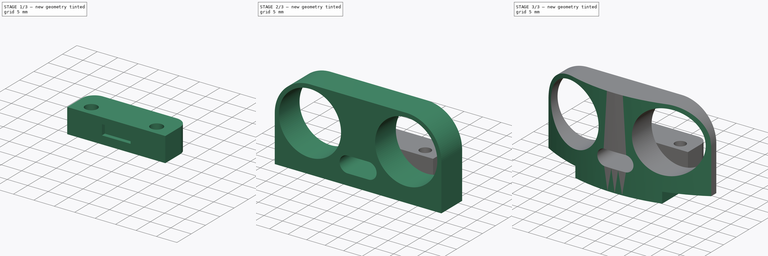
[diagram: build sequence overview — one tinted view per stage of 3, left to right]
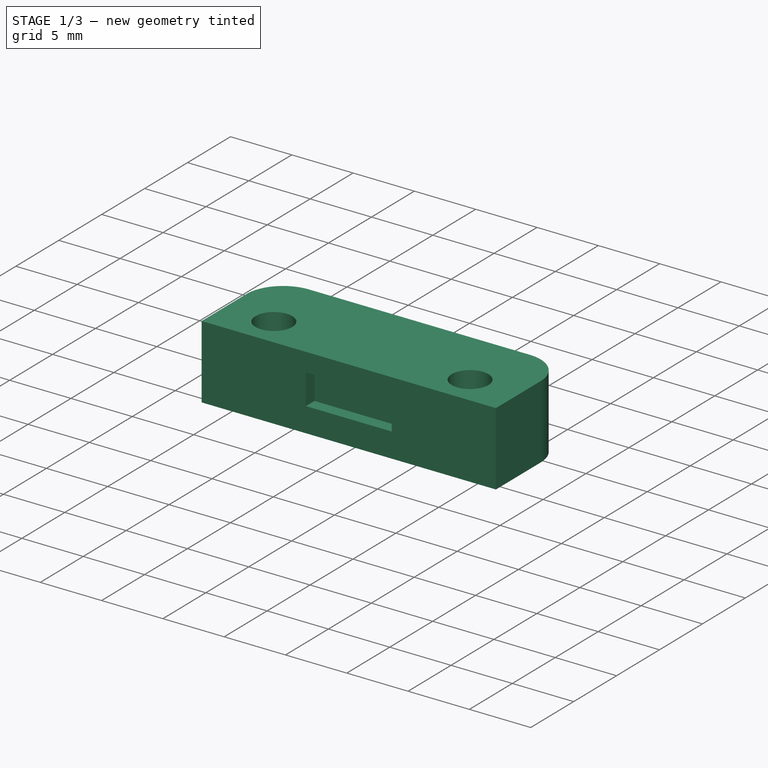
[diagram: stage 1 of 3 — iso view after this stage's code; geometry added in this stage tinted green]
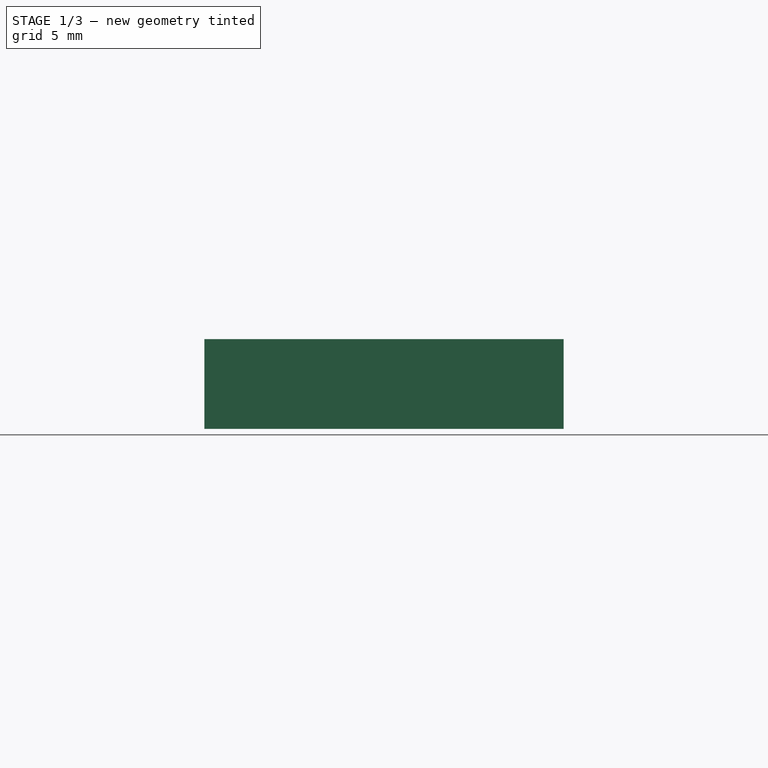
[diagram: stage 1 of 3 — front view after this stage's code; geometry added in this stage tinted green]
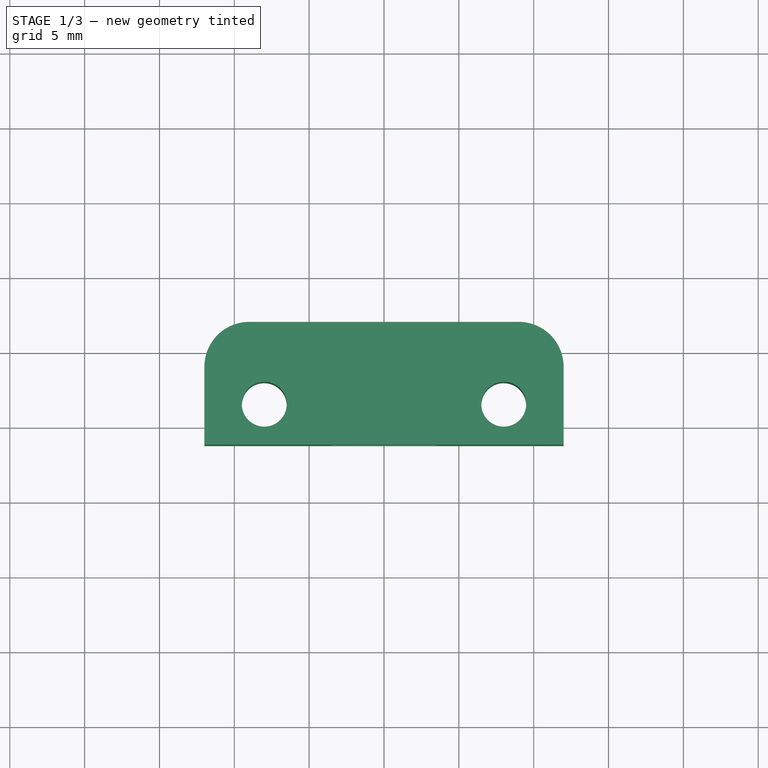
[diagram: stage 1 of 3 — top view after this stage's code; geometry added in this stage tinted green]
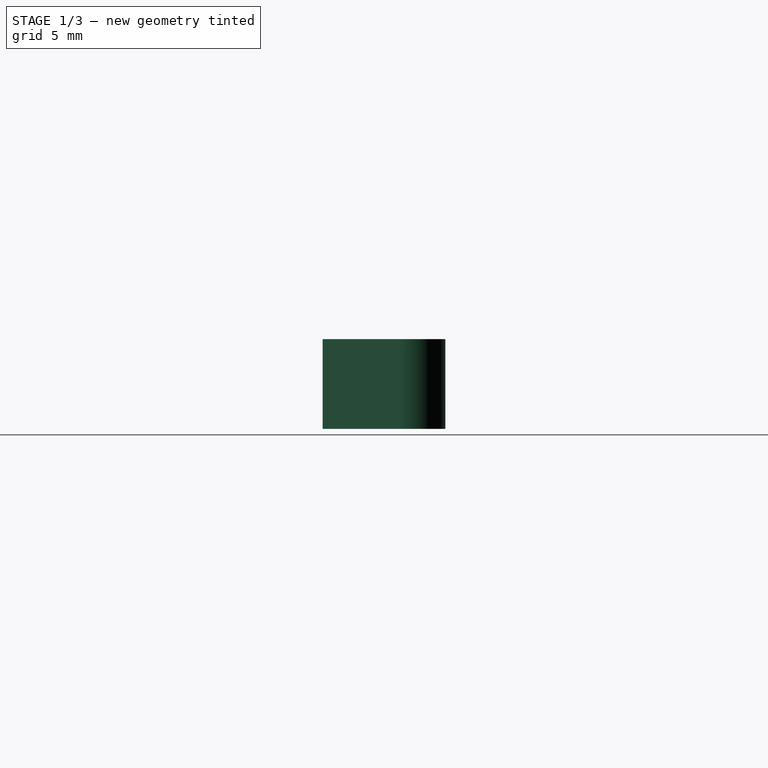
[diagram: stage 1 of 3 — right view after this stage's code; geometry added in this stage tinted green]
FCSTD DOCUMENT  (FreeCAD 2023.131R26244 +5365 (Git))
Label: UltrasonicSensorMount
License: All rights reserved
LicenseURL: http://en.wikipedia.org/wiki/All_rights_reserved
objects: Sketcher::SketchObject×6, PartDesign::Pad×4, PartDesign::Pocket×2, PartDesign::Body×2, App::Part×2, App::FeaturePython×2, Part::FeaturePython×2, TechDraw::DrawSVGTemplate×1, TechDraw::DrawProjGroupItem×1, TechDraw::DrawProjGroup×1, TechDraw::DrawPage×1, Spreadsheet::Sheet×1
note: 33 computed .brp shape members not serialized (recipe doc carries the construction recipe); baked Part::Feature solids carry a one-line shape summary decoded from their .brp

FEATURE [PartDesign::Body] Body  label="BracketBody"
  AutoGroupSolids = false
  ClaimAllChildren = false
  ExportMode = 0
  Group = -> [Sketch,Pad,Sketch001,Pad001,Sketch002,Pocket]
  InvalidShape = false
  Origin = -> Origin001
  Tip = -> Pocket
  TreeRank = 0
  ValidateShape = true
  _ExportChildren = -> [Pad,Pad001,Pocket]
  _GroupVersion = 1
FEATURE [App::Part] Part  label="Bracket"
  ClaimAllChildren = false
  ExportMode = 1
  Group = -> [Body]
  Origin = -> Origin
  TreeRank = 0
  _ExportChildren = -> [Body]
  _GroupVersion = 1
FEATURE [TechDraw::DrawSVGTemplate] Template
  Height = 297
  Orientation = 0
  TreeRank = 2
  Width = 210
FEATURE [TechDraw::DrawProjGroupItem] ProjItem  label="Front"
  CoarseView = false
  Direction = (0,1,0)
  Focus = 100
  HardHidden = false
  IsoCount = 0
  IsoHidden = false
  IsoVisible = false
  LockPosition = true
  Perspective = false
  Rotation = 0
  RotationVector = (-1,0,0)
  ScaleType = 2
  SeamHidden = false
  SeamVisible = true
  SmoothHidden = false
  SmoothVisible = true
  Source = -> [Body]
  TreeRank = 5
  Type = 0
  X = 0
  XDirection = (-1,0,0)
  Y = 0
FEATURE [TechDraw::DrawProjGroup] ProjGroup
  Anchor = -> ProjItem
  AutoDistribute = true
  LockPosition = false
  ProjectionType = 0
  Rotation = 0
  ScaleType = 0
  Source = -> [Body]
  TreeRank = 6
  Views = -> [ProjItem]
  X = 105
  Y = 148.5
  spacingX = 15
  spacingY = 15
FEATURE [TechDraw::DrawPage] Page
  KeepUpdated = true
  NextBalloonIndex = 1
  ProjectionType = 0
  Template = -> Template
  TreeRank = 3
  Views = -> [ProjGroup]
FEATURE [Spreadsheet::Sheet] Spreadsheet
  PythonMode = false
  ShowCells = 0
  TreeRank = 10
  cells = A1=Tab Width; B1(tab_width)==tab_hole_distance + 8mm; D1=Minimum Part thickness; E1(minimum_part_thickness)==3mm; A2=Tab Hole Distance; B2(tab_hole_distance)==16mm; A3=Tab Hole Diameter; B3(tab_hole_diameter)==3mm; A4=Tab hole to back; B4(tab_hole_to_back)==5.5mm; A5=Tab hole to bracket; B5(tab_hole_to_bracket)==6.5mm; A6=Tab rear fillet; B6(tab_rear_fillet)==3mm; A7=Distance Sensor thickness; B7(distance_sensor_thickness)==3.8mm; A8=Distance Sensor base clearance; B8(distance_sensor_base_clearance)==3mm; A9=Retainer height; B9(retainer_height)==minimum_part_thickness + distance_sensor_base_clearance; A10=Retainer to front; B10(retainer_to_front)==tab_hole_to_bracket - distance_sensor_thickness
FEATURE [Sketcher::SketchObject] Sketch003
  ArcFitTolerance = 1e-06
  AttachmentSupport = -> [XY_Plane002]
  ExternalBSplineMaxDegree = 5
  ExternalBSplineTolerance = 0.0001
  FullyConstrained = true
  InternalTolerance = 1e-06
  InvalidShape = false
  MakeInternals = false
  MapMode = 2
  Support = -> [XY_Plane002]
  TreeRank = 21
  ValidateShape = true
  expr: Constraints[11] = Spreadsheet.tab_hole_diameter
  expr: Constraints[12] = Spreadsheet.retainer_to_front
  expr: Constraints[13] = Spreadsheet.tab_hole_to_back
  expr: Constraints[23] = Spreadsheet.tab_rear_fillet
  expr: Constraints[6] = Spreadsheet.distance_sensor_thickness
  expr: Constraints[8] = Spreadsheet.tab_hole_distance
  expr: Constraints[9] = Spreadsheet.tab_width
  sketch-geometry (10):
    g0: LineSegment StartX=-12 StartY=3.8 StartZ=0 EndX=12 EndY=3.8 EndZ=0
    g1: LineSegment StartX=12 StartY=3.8 StartZ=0 EndX=12 EndY=9 EndZ=0
    g2: LineSegment StartX=9 StartY=12 StartZ=0 EndX=-9 EndY=12 EndZ=0
    g3: LineSegment StartX=-12 StartY=9 StartZ=0 EndX=-12 EndY=3.8 EndZ=0
    g4: Circle CenterX=-8 CenterY=6.5 CenterZ=0 NormalX=0 NormalY=0 NormalZ=1 AngleXU=0 Radius=1.5
    g5: Circle CenterX=8 CenterY=6.5 CenterZ=0 NormalX=0 NormalY=0 NormalZ=1 AngleXU=0 Radius=1.5
    g6: ArcOfCircle CenterX=-9 CenterY=9 CenterZ=0 NormalX=0 NormalY=0 NormalZ=1 AngleXU=0 Radius=3 StartAngle=1.5708 EndAngle=3.14159
    g7: GeomPoint [constr] X=-12 Y=12 Z=0
    g8: ArcOfCircle CenterX=9 CenterY=9 CenterZ=0 NormalX=0 NormalY=0 NormalZ=1 AngleXU=0 Radius=3 StartAngle=1.6306e-12 EndAngle=1.5708
    g9: GeomPoint [constr] X=12 Y=12 Z=0
  constraints (24):
    c: Coincident(g0,g1)
    c: Coincident(g3,g0)
    c: Horizontal(g2)
    c: Vertical(g1)
    c: Vertical(g3)
    c: Symmetric(g0,g0,g-2)
    c: DistanceY(g-1,g0) = 3.8
    c: Symmetric(g4,g5,g-2)
    c: DistanceX(g4,g5) = 16
    c: DistanceX(g0,g0) = 24
    c: Equal(g4,g5)
    c: Diameter(g5) = 3
    c: DistanceY(g0,g5) = 2.7
    c: DistanceY(g5,g9) = 5.5
    c: PointOnObject(g7,g2)
    c: PointOnObject(g7,g3)
    c: Tangent(g2,g6) = -1.5708
    c: Tangent(g3,g6) = -1.5708
    c: PointOnObject(g9,g2)
    c: PointOnObject(g9,g1)
    c: Tangent(g2,g8) = -1.5708
    c: Tangent(g1,g8) = -1.5708
    c: Equal(g8,g6)
    c: Radius(g8) = 3
FEATURE [PartDesign::Pad] Pad002
  AddSubType = 0
  AlongSketchNormal = false
  AutoTaperInnerAngle = true
  CheckUpToFaceLimits = true
  ClaimChildren = false
  Direction = (0,0,1)
  Fit = 0
  FitJoin = 0
  InnerFit = 0
  InnerFitJoin = 0
  InvalidShape = false
  Length = 6
  Length2 = 100
  Linearize = true
  NewSolid = false
  Profile = -> Sketch003
  Suppress = false
  TaperInnerAngle = 0
  TaperInnerAngleRev = 0
  TreeRank = 22
  Type = 0
  ValidateShape = true
  _ProfileBasedVersion = 1
  expr: Length = Spreadsheet.retainer_height
FEATURE [App::FeaturePython] Constraints  # WARN: FeaturePython — macro-defined, semantics opaque (R4)
  TreeRank = 24
  _LinkVersion = 1
  _Version = 1
FEATURE [App::FeaturePython] Elements  # WARN: FeaturePython — macro-defined, semantics opaque (R4)
  TreeRank = 25
  _LinkVersion = 1
FEATURE [Part::FeaturePython] Parts  # WARN: FeaturePython — macro-defined, semantics opaque (R4)
  GroupMode = 0
  InvalidShape = false
  TreeRank = 26
  ValidateShape = true
  _LinkVersion = 1
FEATURE [Part::FeaturePython] Assembly  # WARN: FeaturePython — macro-defined, semantics opaque (R4)
  AutoRelax = true
  BuildShape = 0
  Freeze = false
  Group = -> [Constraints,Elements,Parts]
  InvalidShape = false
  TreeRank = 23
  ValidateShape = true
  Verbose = false
  _LinkVersion = 1
  _SolverType = 1
  _Version = 1
FEATURE [Sketcher::SketchObject] Sketch004
  ArcFitTolerance = 1e-06
  AttachmentSupport = -> [Pad002]
  ExternalBSplineMaxDegree = 5
  ExternalBSplineTolerance = 0.0001
  ExternalGeometry = -> [Pad002]
  FullyConstrained = true
  InternalTolerance = 1e-06
  InvalidShape = false
  MakeInternals = false
  MapMode = 5
  Placement = pos=(0,3.8,0) rot=(1,0,0;1.5708rad)
  Support = -> [Pad002]
  TreeRank = 27
  ValidateShape = true
  sketch-geometry (4):
    g0: LineSegment StartX=3.5 StartY=2 StartZ=0 EndX=-3.5 EndY=2 EndZ=0
    g1: LineSegment StartX=-3.5 StartY=2 StartZ=0 EndX=-3.5 EndY=4.5 EndZ=0
    g2: LineSegment StartX=-3.5 StartY=4.5 StartZ=0 EndX=3.5 EndY=4.5 EndZ=0
    g3: LineSegment StartX=3.5 StartY=4.5 StartZ=0 EndX=3.5 EndY=2 EndZ=0
  constraints (11):
    c: Coincident(g0,g1)
    c: Coincident(g1,g2)
    c: Coincident(g2,g3)
    c: Coincident(g3,g0)
    c: Horizontal(g0)
    c: Vertical(g1)
    c: Vertical(g3)
    c: Symmetric(g1,g2,g-2)
    c: DistanceX(g2,g2) = 7
    c: DistanceY(g3,g3) = 2.5
    c: DistanceY(g-4,g0) = 2
FEATURE [PartDesign::Pocket] Pocket001
  AddSubType = 1
  AutoTaperInnerAngle = true
  BaseFeature = -> Pad002
  CheckUpToFaceLimits = true
  ClaimChildren = false
  Fit = 0
  FitJoin = 0
  InnerFit = 0
  InnerFitJoin = 0
  InvalidShape = false
  Length = 1
  Length2 = 100
  Linearize = true
  NewSolid = false
  Profile = -> Sketch004
  Suppress = false
  TaperInnerAngle = 0
  TaperInnerAngleRev = 0
  TreeRank = 28
  Type = 0
  ValidateShape = true
  _ProfileBasedVersion = 1
  _Version = 1
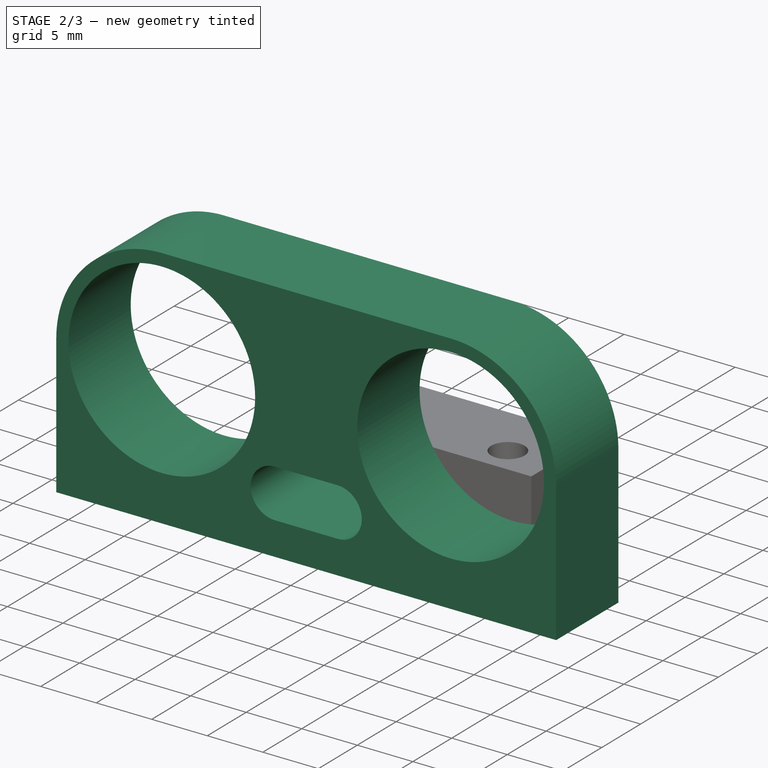
[diagram: stage 2 of 3 — iso view after this stage's code; geometry added in this stage tinted green]
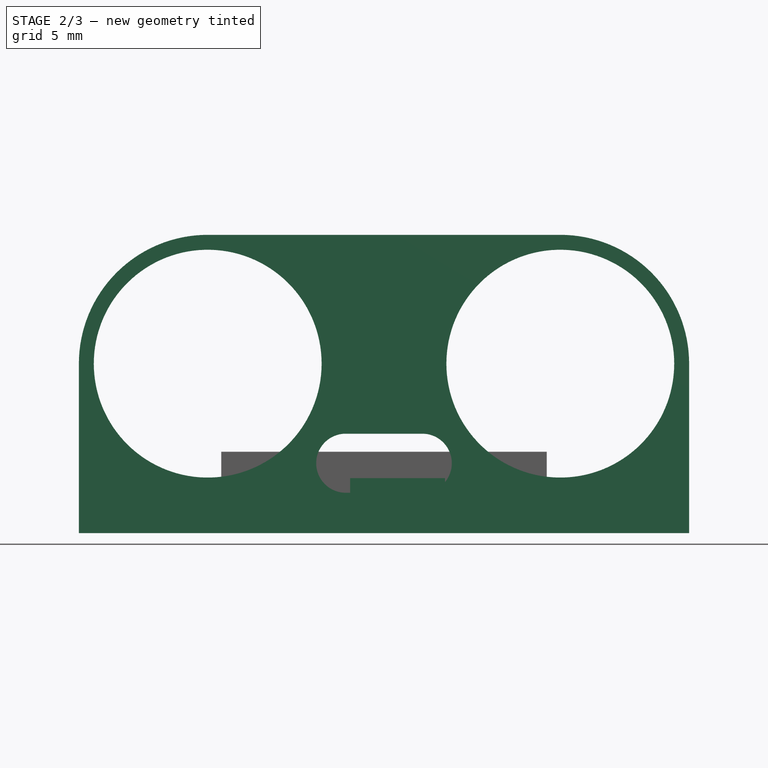
[diagram: stage 2 of 3 — front view after this stage's code; geometry added in this stage tinted green]
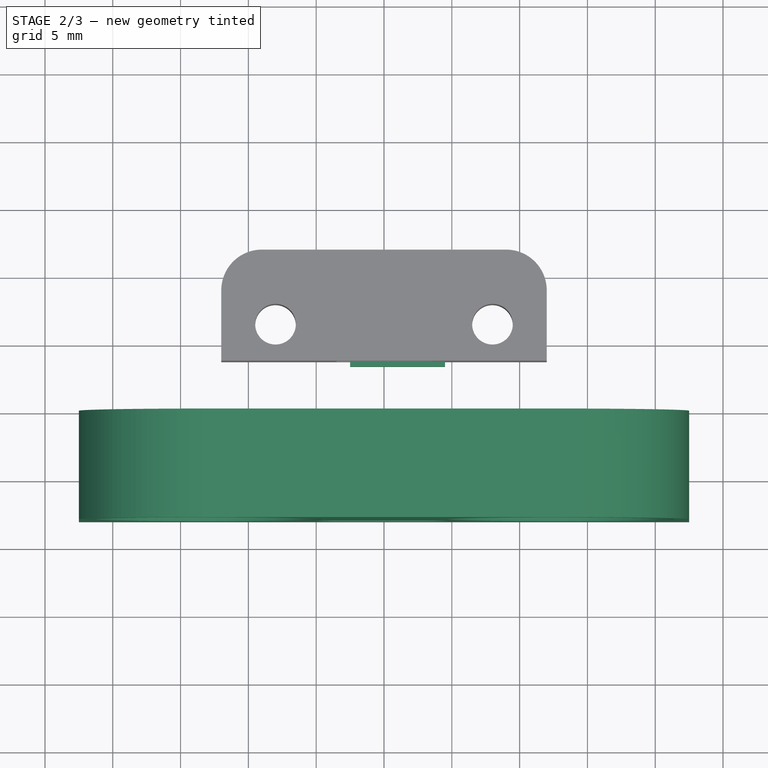
[diagram: stage 2 of 3 — top view after this stage's code; geometry added in this stage tinted green]
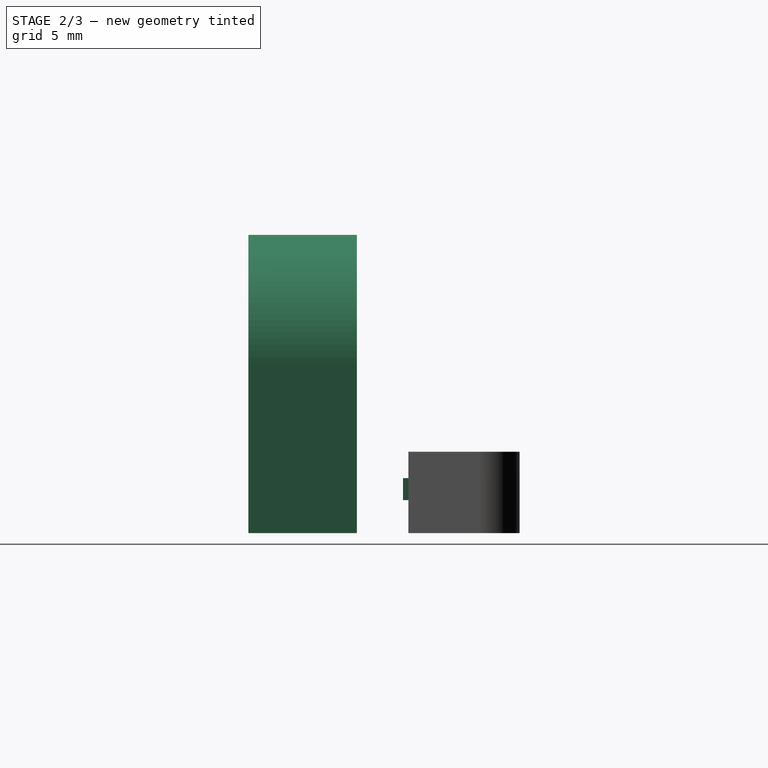
[diagram: stage 2 of 3 — right view after this stage's code; geometry added in this stage tinted green]
FEATURE [Sketcher::SketchObject] Sketch
  ArcFitTolerance = 0
  AttachmentSupport = -> [XZ_Plane001]
  ExternalBSplineMaxDegree = 0
  ExternalBSplineTolerance = 0
  FullyConstrained = true
  InternalTolerance = 1e-06
  InvalidShape = false
  MakeInternals = false
  MapMode = 5
  Placement = pos=(0,0,0) rot=(1,0,0;1.5708rad)
  Support = -> [XZ_Plane001]
  TreeRank = 0
  ValidateShape = true
  sketch-geometry (29):
    g0: LineSegment StartX=-13 StartY=22 StartZ=0 EndX=13 EndY=22 EndZ=0
    g1: LineSegment StartX=22.5 StartY=12.5 StartZ=0 EndX=22.5 EndY=0 EndZ=0
    g2: LineSegment StartX=22.5 StartY=0 StartZ=0 EndX=-22.5 EndY=0 EndZ=0
    g3: LineSegment StartX=-22.5 StartY=0 StartZ=0 EndX=-22.5 EndY=12.5 EndZ=0
    g4: Circle CenterX=-13 CenterY=12.5 CenterZ=0 NormalX=0 NormalY=0 NormalZ=1 AngleXU=0 Radius=8.4
    g5: Circle CenterX=13 CenterY=12.5 CenterZ=0 NormalX=0 NormalY=0 NormalZ=1 AngleXU=0 Radius=8.4
    g6: ArcOfCircle CenterX=-13 CenterY=12.5 CenterZ=0 NormalX=0 NormalY=0 NormalZ=1 AngleXU=0 Radius=9.5 StartAngle=1.5708 EndAngle=3.14159
    g7: GeomPoint [constr] X=-22.5 Y=22 Z=0
    g8: ArcOfCircle CenterX=13 CenterY=12.5 CenterZ=0 NormalX=0 NormalY=0 NormalZ=1 AngleXU=0 Radius=9.5 StartAngle=0 EndAngle=1.5708
    g9: GeomPoint [constr] X=22.5 Y=22 Z=0
    g10: ArcOfCircle CenterX=-2.822 CenterY=5.158 CenterZ=0 NormalX=0 NormalY=0 NormalZ=1 AngleXU=0 Radius=2.178 StartAngle=1.5708 EndAngle=4.71239
    g11: ArcOfCircle CenterX=2.822 CenterY=5.158 CenterZ=0 NormalX=0 NormalY=0 NormalZ=1 AngleXU=0 Radius=2.178 StartAngle=4.71239 EndAngle=7.85398
    g12: LineSegment StartX=-2.822 StartY=2.98 StartZ=0 EndX=2.822 EndY=2.98 EndZ=0
    g13: LineSegment StartX=2.822 StartY=7.336 StartZ=0 EndX=-2.822 EndY=7.336 EndZ=0
    g14: LineSegment [constr] StartX=-22.5 StartY=22.5 StartZ=0 EndX=22.5 EndY=22.5 EndZ=0
    g15: LineSegment [constr] StartX=22.5 StartY=22.5 StartZ=0 EndX=22.5 EndY=2.5 EndZ=0
    g16: LineSegment [constr] StartX=22.5 StartY=2.5 StartZ=0 EndX=-22.5 EndY=2.5 EndZ=0
    g17: LineSegment [constr] StartX=-22.5 StartY=2.5 StartZ=0 EndX=-22.5 EndY=22.5 EndZ=0
    g18: LineSegment [constr] StartX=-13 StartY=12.5 StartZ=0 EndX=13 EndY=12.5 EndZ=0
    g19: LineSegment [constr] StartX=-5 StartY=7.336 StartZ=0 EndX=-5 EndY=2.98 EndZ=0
    g20: LineSegment [constr] StartX=5 StartY=7.336 StartZ=0 EndX=5 EndY=2.98 EndZ=0
    g21: ArcOfCircle [constr] CenterX=2.822 CenterY=5.158 CenterZ=0 NormalX=0 NormalY=0 NormalZ=1 AngleXU=0 Radius=1.778 StartAngle=4.71239 EndAngle=7.85398
    g22: ArcOfCircle [constr] CenterX=-2.822 CenterY=5.158 CenterZ=0 NormalX=0 NormalY=0 NormalZ=1 AngleXU=0 Radius=1.778 StartAngle=1.5708 EndAngle=4.71239
    g23: LineSegment [constr] StartX=2.822 StartY=6.936 StartZ=0 EndX=-2.822 EndY=6.936 EndZ=0
    g24: LineSegment [constr] StartX=-2.822 StartY=3.38 StartZ=0 EndX=2.822 EndY=3.38 EndZ=0
    g25: LineSegment [constr] StartX=-18 StartY=4.5 StartZ=0 EndX=-8 EndY=4.5 EndZ=0
    g26: LineSegment [constr] StartX=-13 StartY=12.5 StartZ=0 EndX=-13 EndY=4.1 EndZ=0
    g27: Circle [constr] CenterX=-13 CenterY=12.5 CenterZ=0 NormalX=0 NormalY=0 NormalZ=1 AngleXU=0 Radius=8
    g28: Circle [constr] CenterX=13 CenterY=12.5 CenterZ=0 NormalX=0 NormalY=0 NormalZ=1 AngleXU=0 Radius=8
  constraints (70):
    c: Coincident(g1,g2)
    c: Coincident(g2,g3)
    c: Horizontal(g0)
    c: Vertical(g1)
    c: Tangent(g2,g-1)
    c: Symmetric(g2,g1,g-2)
    c: Symmetric(g4,g5,g-2)
    c: Equal(g4,g5)
    c: Diameter(g5) = 16.8
    c: DistanceX(g4,g5) = 26
    c: DistanceX(g7,g9) = 45
    c: DistanceY(g3,g7) = 22
    c: PointOnObject(g7,g0)
    c: PointOnObject(g7,g3)
    c: Tangent(g0,g6) = 1.5708
    c: Tangent(g3,g6) = 1.5708
    c: PointOnObject(g9,g0)
    c: PointOnObject(g9,g1)
    c: Tangent(g0,g8) = 1.5708
    c: Tangent(g1,g8) = 1.5708
    c: Coincident(g6,g4)
    c: Coincident(g8,g5)
    c: Tangent(g10,g12) = -1.5708
    c: Tangent(g12,g11) = -1.5708
    c: Tangent(g11,g13) = -1.5708
    c: Tangent(g13,g10) = -1.5708
    c: Equal(g10,g11)
    c: Coincident(g14,g15)
    c: Coincident(g15,g16)
    c: Coincident(g16,g17)
    c: Coincident(g17,g14)
    c: Vertical(g15)
    c: DistanceY(g17,g17) = 20
    c: DistanceX(g14,g14) = 45
    c: Symmetric(g14,g14,g-2)
    c: Coincident(g18,g4)
    c: Coincident(g18,g5)
    c: Vertical(g20)
    c: Vertical(g19)
    c: Horizontal(g19,g10)
    c: Horizontal(g20,g11)
    c: Horizontal(g20,g11)
    c: Horizontal(g10,g19)
    c: Tangent(g10,g19)
    c: Tangent(g11,g20)
    c: DistanceX(g19,g20) = 10
    c: Symmetric(g11,g10,g-2)
    c: Horizontal(g16)
    c: Tangent(g21,g23) = -1.5708
    c: Tangent(g23,g22) = -1.5708
    c: Tangent(g22,g24) = -1.5708
    c: Tangent(g24,g21) = -1.5708
    c: Equal(g21,g22)
    c: Coincident(g22,g10)
    c: Coincident(g21,g11)
    c: Diameter(g22) = 3.556
    c: DistanceY(g22,g10) = 0.4
    c: Horizontal(g25)
    c: DistanceX(g25,g25) = 10
    c: Coincident(g26,g4)
    c: PointOnObject(g26,g4)
    c: Symmetric(g25,g25,g26)
    c: Coincident(g27,g4)
    c: Coincident(g28,g5)
    c: Equal(g28,g27)
    c: Diameter(g27) = 16
    c: Tangent(g25,g27)
    c: DistanceY(g16,g25) = 2
    c: DistanceY(g16,g22) = 0.88
    c: Vertical(g17)
FEATURE [PartDesign::Pad] Pad
  AddSubType = 0
  AutoTaperInnerAngle = false
  CheckUpToFaceLimits = true
  ClaimChildren = false
  Direction = (0,-1,-2e-16)
  Fit = 0
  FitJoin = 0
  InnerFit = 0
  InnerFitJoin = 0
  InvalidShape = false
  Length = 8
  Length2 = 10
  NewSolid = false
  Profile = -> Sketch
  ReferenceAxis = -> Sketch [N_Axis]
  Suppress = false
  TaperInnerAngle = 0
  TaperInnerAngleRev = 0
  TreeRank = 0
  Type = 0
  ValidateShape = true
  _ProfileBasedVersion = 0
FEATURE [Sketcher::SketchObject] Sketch005
  ArcFitTolerance = 1e-06
  AttachmentSupport = -> [Pocket001]
  ExternalBSplineMaxDegree = 5
  ExternalBSplineTolerance = 0.0001
  ExternalGeometry = -> [Pocket001]
  FullyConstrained = true
  InternalTolerance = 1e-06
  InvalidShape = false
  MakeInternals = false
  MapMode = 5
  Placement = pos=(0,3.8,0) rot=(1,0,0;1.5708rad)
  Support = -> [Pocket001]
  TreeRank = 29
  ValidateShape = true
  sketch-geometry (4):
    g0: LineSegment StartX=4.5 StartY=4.06 StartZ=0 EndX=-2.5 EndY=4.06 EndZ=0
    g1: LineSegment StartX=-2.5 StartY=4.06 StartZ=0 EndX=-2.5 EndY=2.44 EndZ=0
    g2: LineSegment StartX=-2.5 StartY=2.44 StartZ=0 EndX=4.5 EndY=2.44 EndZ=0
    g3: LineSegment StartX=4.5 StartY=2.44 StartZ=0 EndX=4.5 EndY=4.06 EndZ=0
  constraints (12):
    c: Coincident(g0,g1)
    c: Coincident(g1,g2)
    c: Coincident(g2,g3)
    c: Coincident(g3,g0)
    c: Horizontal(g0)
    c: Horizontal(g2)
    c: Vertical(g1)
    c: Vertical(g3)
    c: DistanceX(g-5,g2) = 1
    c: DistanceX(g-4,g1) = 1
    c: DistanceY(g-5,g2) = 0.44
    c: DistanceY(g0,g-5) = 0.44
FEATURE [PartDesign::Pad] Pad003
  AddSubType = 0
  AlongSketchNormal = false
  AutoTaperInnerAngle = true
  BaseFeature = -> Pocket001
  CheckUpToFaceLimits = true
  ClaimChildren = false
  Direction = (0,-1,2e-16)
  Fit = 0
  FitJoin = 0
  InnerFit = 0
  InnerFitJoin = 0
  InvalidShape = false
  Length = 0.4
  Length2 = 100
  Linearize = true
  NewSolid = false
  Profile = -> Sketch005
  Suppress = false
  TaperInnerAngle = 0
  TaperInnerAngleRev = 0
  TreeRank = 30
  Type = 0
  ValidateShape = true
  _ProfileBasedVersion = 1
FEATURE [PartDesign::Body] Body001  label="RetainerBody"
  AutoGroupSolids = false
  ClaimAllChildren = false
  ExportMode = 0
  Group = -> [Sketch003,Pad002,Sketch004,Pocket001,Sketch005,Pad003]
  InvalidShape = false
  Origin = -> Origin003
  Tip = -> Pad003
  TreeRank = 20
  ValidateShape = true
  _ExportChildren = -> [Pad002,Pocket001,Pad003]
  _GroupVersion = 1
FEATURE [App::Part] Part001  label="Retainer"
  ClaimAllChildren = false
  ExportMode = 1
  Group = -> [Body001]
  Origin = -> Origin002
  TreeRank = 9
  _ExportChildren = -> [Body001]
  _GroupVersion = 1
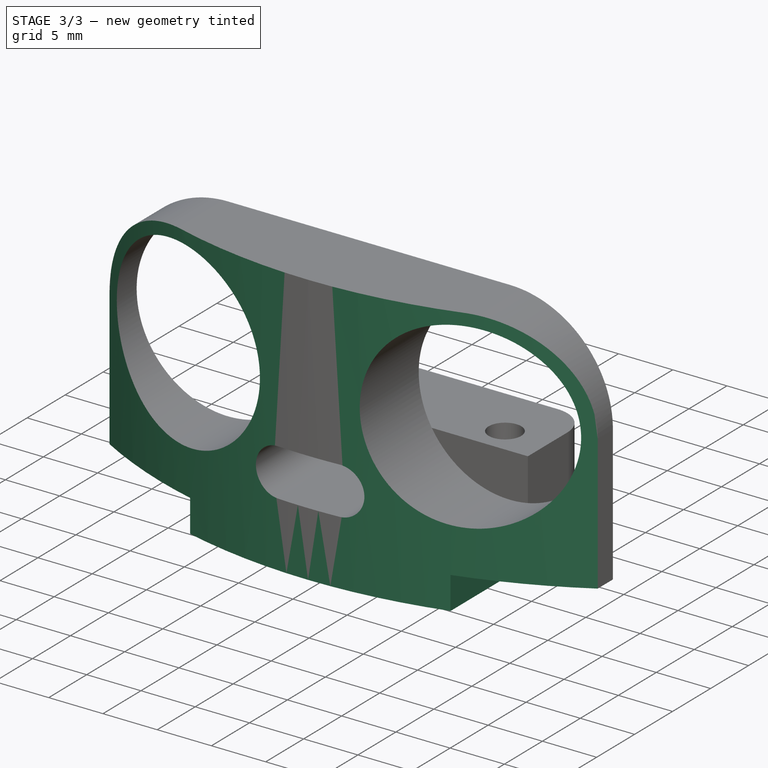
[diagram: stage 3 of 3 — iso view after this stage's code; geometry added in this stage tinted green]
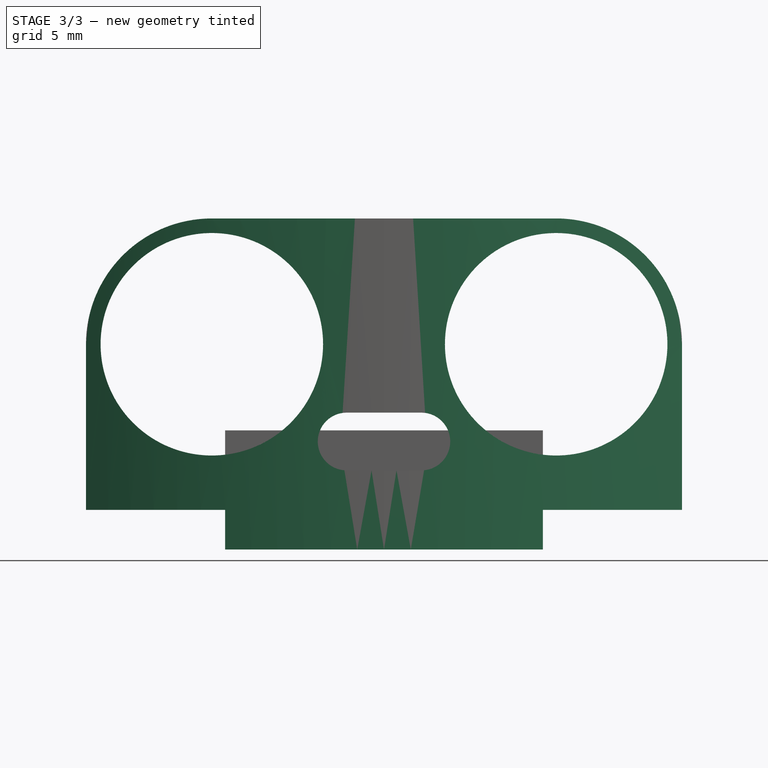
[diagram: stage 3 of 3 — front view after this stage's code; geometry added in this stage tinted green]
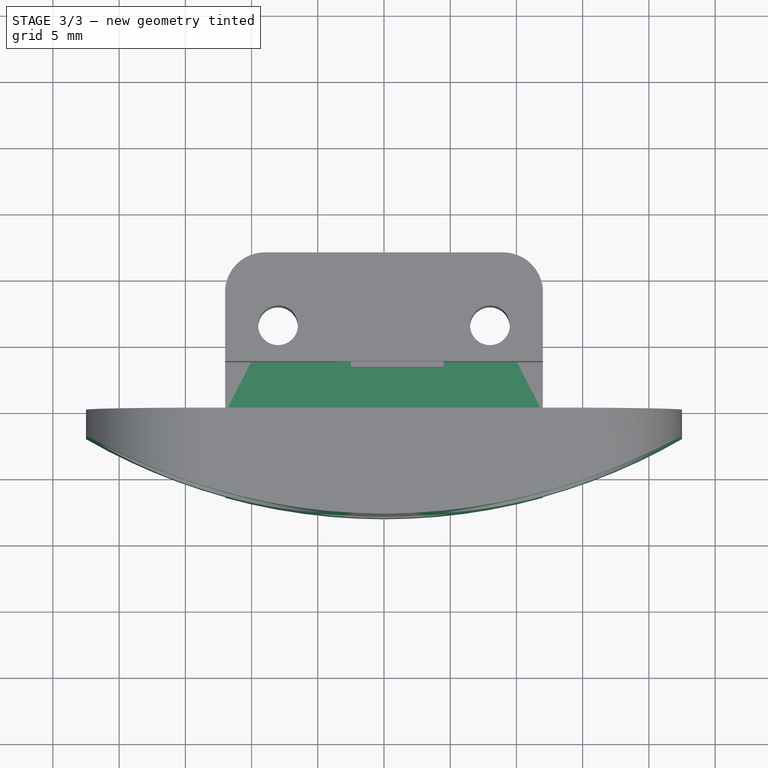
[diagram: stage 3 of 3 — top view after this stage's code; geometry added in this stage tinted green]
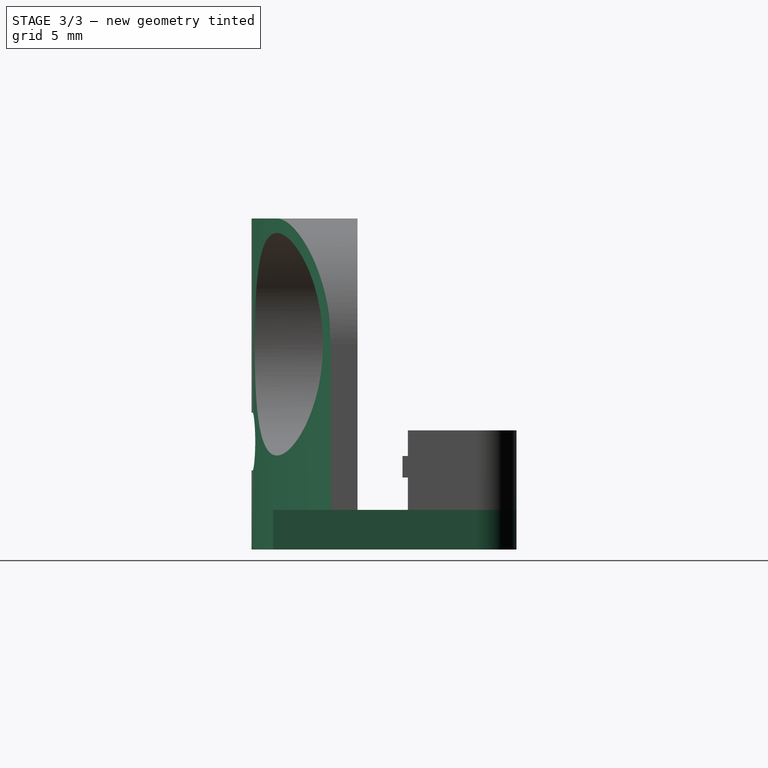
[diagram: stage 3 of 3 — right view after this stage's code; geometry added in this stage tinted green]
FEATURE [Sketcher::SketchObject] Sketch001
  ArcFitTolerance = 0
  AttachmentSupport = -> [Pad]
  ExternalBSplineMaxDegree = 0
  ExternalBSplineTolerance = 0
  ExternalGeometry = -> [Pad]
  FullyConstrained = true
  InternalTolerance = 1e-06
  InvalidShape = false
  MakeInternals = false
  MapMode = 5
  Placement = pos=(0,0,0) rot=(1,0,0;3.14159rad)
  Support = -> [Pad]
  TreeRank = 0
  ValidateShape = true
  expr: Constraints[10] = Spreadsheet.tab_hole_to_back
  expr: Constraints[11] = Spreadsheet.tab_hole_to_bracket
  expr: Constraints[12] = Spreadsheet.tab_hole_distance
  expr: Constraints[22] = Spreadsheet.tab_rear_fillet
  expr: Constraints[23] = Spreadsheet.tab_width
  expr: Constraints[6] = Spreadsheet.tab_hole_diameter
  sketch-geometry (10):
    g0: LineSegment StartX=-9 StartY=-12 StartZ=0 EndX=9 EndY=-12 EndZ=0
    g1: LineSegment StartX=12 StartY=-9 StartZ=0 EndX=12 EndY=8 EndZ=0
    g2: LineSegment StartX=12 StartY=8 StartZ=0 EndX=-12 EndY=8 EndZ=0
    g3: LineSegment StartX=-12 StartY=8 StartZ=0 EndX=-12 EndY=-9 EndZ=0
    g4: Circle CenterX=-8 CenterY=-6.5 CenterZ=0 NormalX=0 NormalY=0 NormalZ=1 AngleXU=0 Radius=1.5
    g5: Circle CenterX=8 CenterY=-6.5 CenterZ=0 NormalX=0 NormalY=0 NormalZ=1 AngleXU=0 Radius=1.5
    g6: ArcOfCircle CenterX=-9 CenterY=-9 CenterZ=0 NormalX=0 NormalY=0 NormalZ=1 AngleXU=0 Radius=3 StartAngle=3.14159 EndAngle=4.71239
    g7: GeomPoint [constr] X=-12 Y=-12 Z=0
    g8: ArcOfCircle CenterX=9 CenterY=-9 CenterZ=0 NormalX=0 NormalY=0 NormalZ=1 AngleXU=0 Radius=3 StartAngle=4.71239 EndAngle=6.28319
    g9: GeomPoint [constr] X=12 Y=-12 Z=0
  constraints (24):
    c: Coincident(g1,g2)
    c: Coincident(g2,g3)
    c: Horizontal(g0)
    c: Vertical(g1)
    c: Vertical(g3)
    c: Symmetric(g2,g1,g-2)
    c: Diameter(g5) = 3
    c: Equal(g5,g4)
    c: Symmetric(g4,g5,g-2)
    c: PointOnObject(g2,g-3)
    c: DistanceY(g7,g4) = 5.5
    c: DistanceY(g4,g-1) = 6.5
    c: DistanceX(g4,g5) = 16
    c: PointOnObject(g7,g0)
    c: PointOnObject(g7,g3)
    c: Tangent(g0,g6) = -1.5708
    c: Tangent(g3,g6) = -1.5708
    c: PointOnObject(g9,g0)
    c: PointOnObject(g9,g1)
    c: Tangent(g0,g8) = -1.5708
    c: Tangent(g1,g8) = -1.5708
    c: Equal(g8,g6)
    c: Radius(g8) = 3
    c: DistanceX(g3,g1) = 24
FEATURE [PartDesign::Pad] Pad001
  AddSubType = 0
  AlongSketchNormal = false
  AutoTaperInnerAngle = false
  BaseFeature = -> Pad
  CheckUpToFaceLimits = true
  ClaimChildren = false
  Direction = (0,2e-16,-1)
  Fit = 0
  FitJoin = 0
  InnerFit = 0
  InnerFitJoin = 0
  InvalidShape = false
  Length = 3
  Length2 = 10
  NewSolid = false
  Profile = -> Sketch001
  ReferenceAxis = -> Sketch001 [N_Axis]
  Suppress = false
  TaperInnerAngle = 0
  TaperInnerAngleRev = 0
  TreeRank = 0
  Type = 0
  ValidateShape = true
  _ProfileBasedVersion = 0
  expr: Length = Spreadsheet.minimum_part_thickness
FEATURE [Sketcher::SketchObject] Sketch002
  ArcFitTolerance = 0
  AttachmentSupport = -> [Pad001]
  ExternalBSplineMaxDegree = 0
  ExternalBSplineTolerance = 0
  ExternalGeometry = -> [Pad001]
  FullyConstrained = true
  InternalTolerance = 1e-06
  InvalidShape = false
  MakeInternals = false
  MapMode = 5
  Placement = pos=(0,-4.9e-15,22) rot=(0,0,1;0rad)
  Support = -> [Pad001]
  TreeRank = 0
  ValidateShape = true
  sketch-geometry (4):
    g0: LineSegment StartX=-22.5 StartY=-2 StartZ=0 EndX=-22.5 EndY=-9 EndZ=0
    g1: LineSegment StartX=-22.5 StartY=-9 StartZ=0 EndX=22.5 EndY=-9 EndZ=0
    g2: LineSegment StartX=22.5 StartY=-9 StartZ=0 EndX=22.5 EndY=-2 EndZ=0
    g3: ArcOfCircle CenterX=8.9e-15 CenterY=37.1875 CenterZ=0 NormalX=0 NormalY=0 NormalZ=1 AngleXU=0 Radius=45.1875 StartAngle=4.19118 EndAngle=5.23359
  constraints (11):
    c: Coincident(g0,g1)
    c: Coincident(g1,g2)
    c: Horizontal(g1)
    c: Tangent(g0,g-5)
    c: Tangent(g2,g-4)
    c: Horizontal(g2,g0)
    c: Coincident(g3,g2)
    c: Coincident(g3,g0)
    c: Tangent(g3,g-3)
    c: DistanceY(g2,g-4) = 2
    c: DistanceY(g2,g2) = 7
FEATURE [PartDesign::Pocket] Pocket
  AddSubType = 1
  AutoTaperInnerAngle = false
  BaseFeature = -> Pad001
  CheckUpToFaceLimits = true
  ClaimChildren = false
  Fit = 0
  FitJoin = 0
  InnerFit = 0
  InnerFitJoin = 0
  InvalidShape = false
  Length = 5
  Length2 = 5
  NewSolid = false
  Profile = -> Sketch002
  Suppress = false
  TaperInnerAngle = 0
  TaperInnerAngleRev = 0
  TreeRank = 0
  Type = 1
  ValidateShape = true
  _ProfileBasedVersion = 0
  _Version = 0
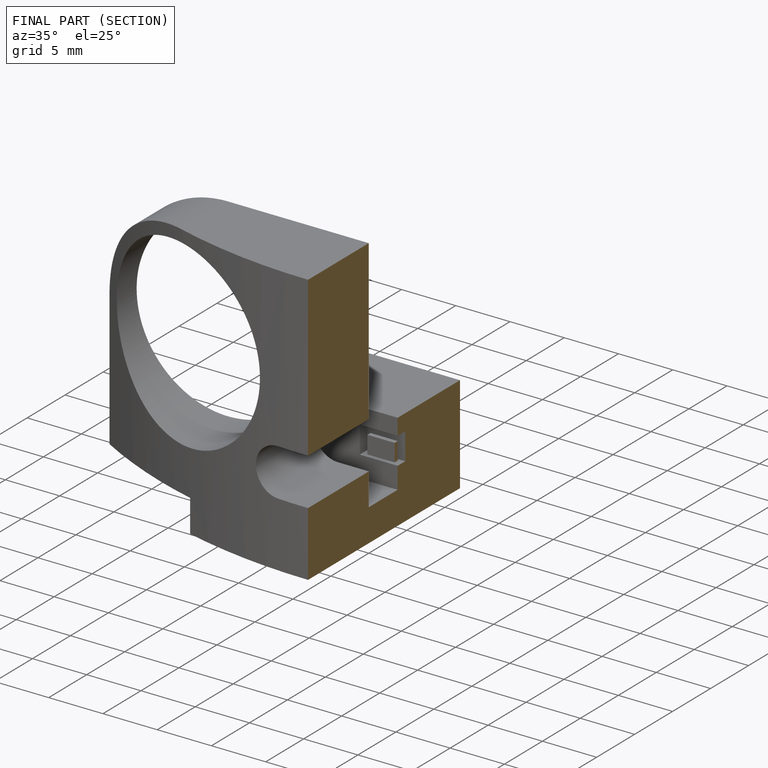
[diagram: finished part — half-section view (interior)]
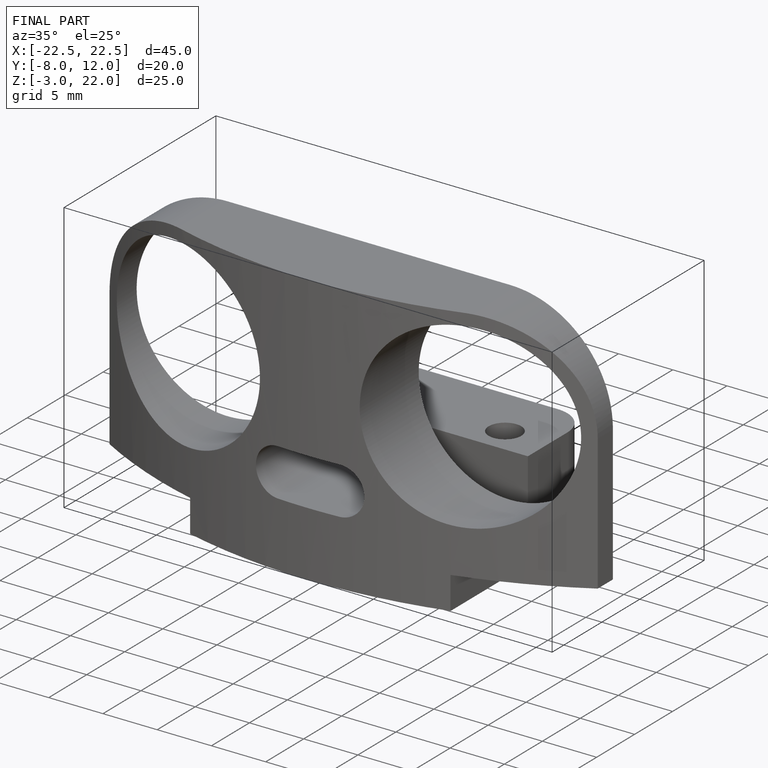
[diagram: finished part — iso view with bounding-box wireframe]
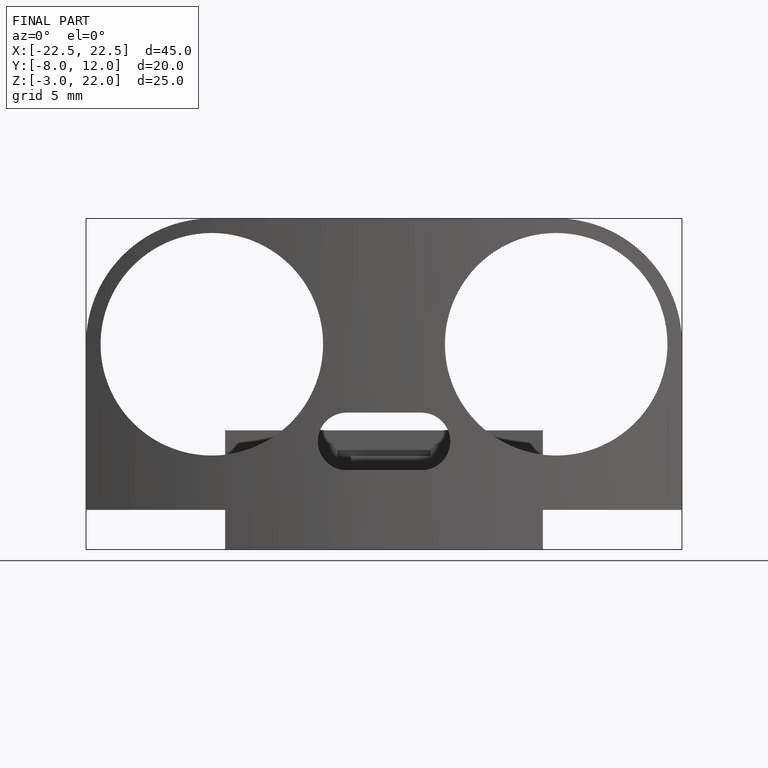
[diagram: finished part — front view with bounding-box wireframe]
